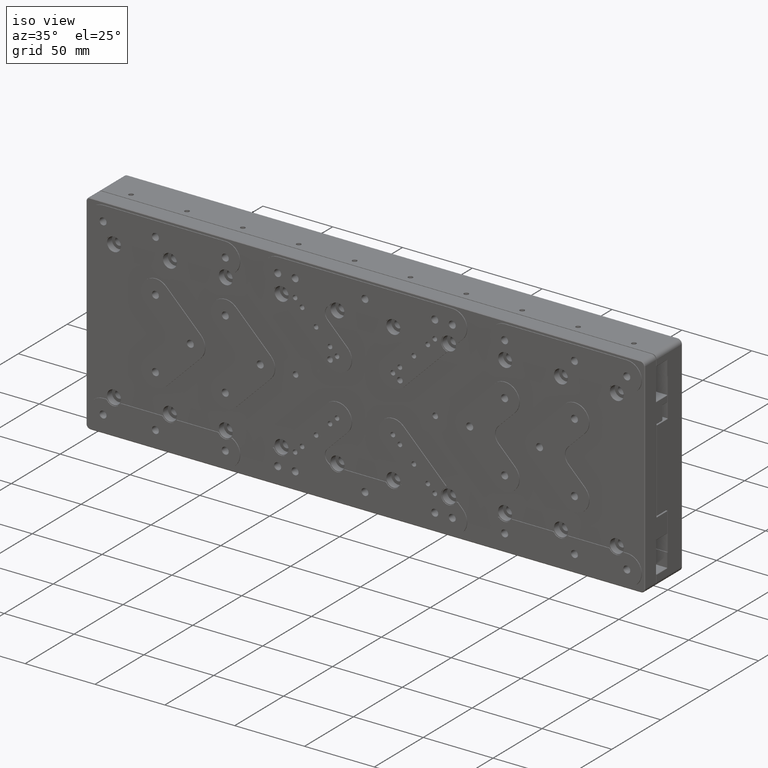
[diagram: clean part render]
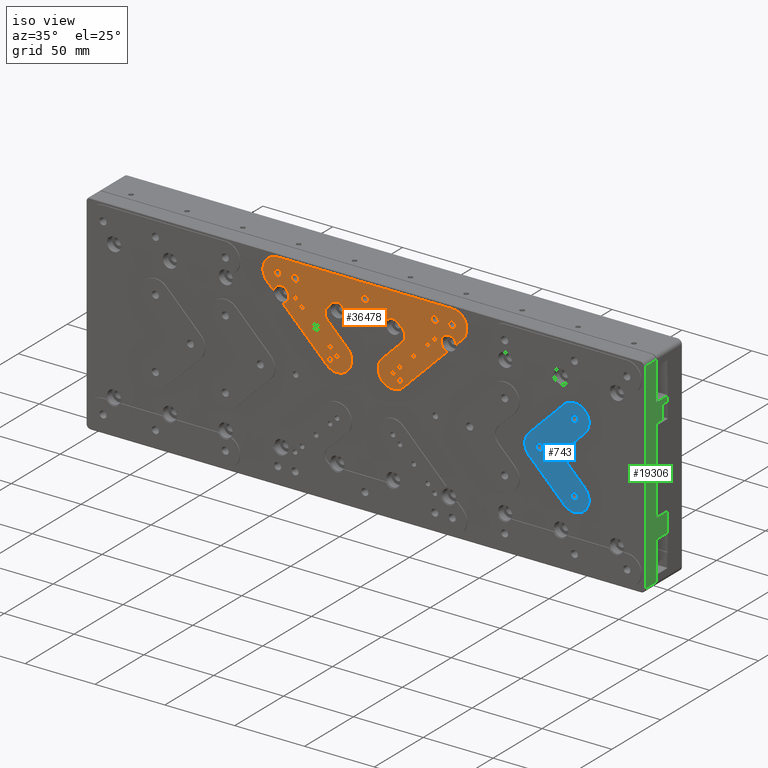
[diagram: same view with three faces highlighted in distinct colors, each labeled with its STEP entity id]
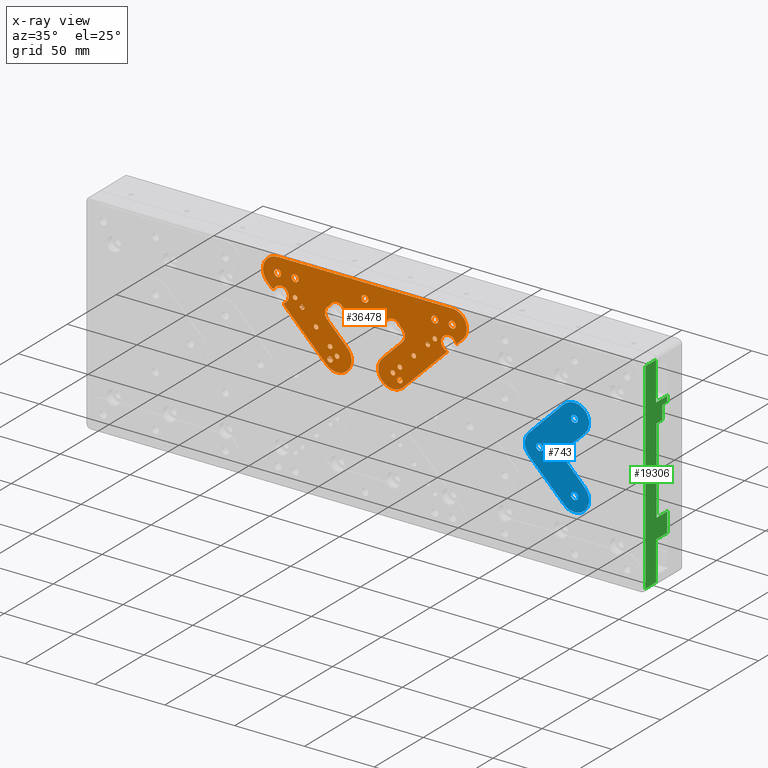
[diagram: x-ray of the same camera — body ghosted, the three highlighted faces saturated]
A machine part, iso view with three faces highlighted in distinct colors.
The next image is the same camera in x-ray (body ghosted, the three faces saturated) — at least one of them is partly hidden behind the body in this view.
Their STEP definitions:

[orange] entity #36478 — the highlighted planar face has unit normal (0, -1, 0).
#2 = VERTEX_POINT ( 'NONE', #35828 ) ;
#84 = AXIS2_PLACEMENT_3D ( 'NONE', #9169, #21508, #33805 ) ;
#99 = ORIENTED_EDGE ( 'NONE', *, *, #12817, .T. ) ;
#141 = EDGE_CURVE ( 'NONE', #20205, #24578, #38051, .T. ) ;
#161 = VECTOR ( 'NONE', #30609, 1000.000000000000114 ) ;
#328 = CARTESIAN_POINT ( 'NONE',  ( -25.00000000000000000, -24.00000000000000000, 18.57000000000000384 ) ) ;
#412 = DIRECTION ( 'NONE',  ( -0.000000000000000000, 1.000000000000000000, -0.000000000000000000 ) ) ;
#424 = ORIENTED_EDGE ( 'NONE', *, *, #7129, .F. ) ;
#442 = EDGE_CURVE ( 'NONE', #27727, #27466, #10874, .T. ) ;
#455 = VECTOR ( 'NONE', #6721, 1000.000000000000114 ) ;
#502 = CARTESIAN_POINT ( 'NONE',  ( -62.50000000000000000, -24.00000000000000000, 73.00000000000000000 ) ) ;
#583 = CARTESIAN_POINT ( 'NONE',  ( -20.00000000000000000, -24.00000000000000000, 18.35000000000000142 ) ) ;
#607 = AXIS2_PLACEMENT_3D ( 'NONE', #3316, #686, #12405 ) ;
#619 = DIRECTION ( 'NONE',  ( 0.000000000000000000, 0.000000000000000000, 1.000000000000000000 ) ) ;
#649 = EDGE_CURVE ( 'NONE', #12313, #12313, #16045, .T. ) ;
#686 = DIRECTION ( 'NONE',  ( -0.000000000000000000, 1.000000000000000000, -0.000000000000000000 ) ) ;
#789 = AXIS2_PLACEMENT_3D ( 'NONE', #12323, #21814, #36958 ) ;
#876 = EDGE_CURVE ( 'NONE', #3380, #26182, #31849, .T. ) ;
#936 = CARTESIAN_POINT ( 'NONE',  ( 60.00000000000000000, -24.00000000000000000, 49.50000000000000000 ) ) ;
#1004 = EDGE_CURVE ( 'NONE', #7753, #2730, #7042, .T. ) ;
#1129 = DIRECTION ( 'NONE',  ( 0.000000000000000000, 0.000000000000000000, -1.000000000000000000 ) ) ;
#1144 = EDGE_CURVE ( 'NONE', #2, #27466, #15857, .T. ) ;
#1165 = VECTOR ( 'NONE', #3762, 1000.000000000000114 ) ;
#1308 = CARTESIAN_POINT ( 'NONE',  ( -20.00000000000000000, -24.00000000000000000, 49.50000000000000000 ) ) ;
#1435 = CARTESIAN_POINT ( 'NONE',  ( -25.00000000000000000, -24.00000000000000000, 25.00000000000000000 ) ) ;
#1444 = ORIENTED_EDGE ( 'NONE', *, *, #876, .T. ) ;
#1818 = CARTESIAN_POINT ( 'NONE',  ( 45.00000000000000000, -24.00000000000000000, 45.00000000000000000 ) ) ;
#1924 = VERTEX_POINT ( 'NONE', #7788 ) ;
#2005 = ORIENTED_EDGE ( 'NONE', *, *, #24337, .T. ) ;
#2015 = CIRCLE ( 'NONE', #84, 1.649999999999998579 ) ;
#2068 = DIRECTION ( 'NONE',  ( -0.000000000000000000, 1.000000000000000000, -0.000000000000000000 ) ) ;
#2151 = DIRECTION ( 'NONE',  ( -0.000000000000000000, 1.000000000000000000, -0.000000000000000000 ) ) ;
#2175 = EDGE_LOOP ( 'NONE', ( #12240 ) ) ;
#2231 = VERTEX_POINT ( 'NONE', #37661 ) ;
#2303 = EDGE_CURVE ( 'NONE', #17864, #28243, #21011, .T. ) ;
#2409 = CIRCLE ( 'NONE', #7565, 1.000000000000000888 ) ;
#2730 = VERTEX_POINT ( 'NONE', #37819 ) ;
#2934 = CARTESIAN_POINT ( 'NONE',  ( 25.91194536576000118, -24.00000000000000000, 52.20164801412001054 ) ) ;
#2965 = VERTEX_POINT ( 'NONE', #33664 ) ;
#3050 = DIRECTION ( 'NONE',  ( 0.000000000000000000, 0.000000000000000000, 1.000000000000000000 ) ) ;
#3146 = DIRECTION ( 'NONE',  ( 0.000000000000000000, 0.000000000000000000, 1.000000000000000000 ) ) ;
#3265 = CIRCLE ( 'NONE', #25203, 10.50000000000000000 ) ;
#3316 = CARTESIAN_POINT ( 'NONE',  ( 0.000000000000000000, -24.00000000000000000, 62.50000000000000000 ) ) ;
#3380 = VERTEX_POINT ( 'NONE', #39702 ) ;
#3397 = CIRCLE ( 'NONE', #22107, 1.649999999999998579 ) ;
#3762 = DIRECTION ( 'NONE',  ( 0.7071067811865975328, 0.000000000000000000, -0.7071067811864976127 ) ) ;
#3784 = ORIENTED_EDGE ( 'NONE', *, *, #19103, .T. ) ;
#3791 = ORIENTED_EDGE ( 'NONE', *, *, #19424, .F. ) ;
#3822 = CARTESIAN_POINT ( 'NONE',  ( -25.44816405934569659, -24.00000000000000000, 51.31569829781717118 ) ) ;
#3913 = CARTESIAN_POINT ( 'NONE',  ( -20.00000000000000000, -24.00000000000000000, 20.00000000000000000 ) ) ;
#4090 = AXIS2_PLACEMENT_3D ( 'NONE', #30050, #15536, #12088 ) ;
#4115 = ORIENTED_EDGE ( 'NONE', *, *, #15513, .F. ) ;
#4439 = EDGE_CURVE ( 'NONE', #27727, #6907, #31896, .T. ) ;
#4738 = DIRECTION ( 'NONE',  ( -0.000000000000000000, 1.000000000000000000, -0.000000000000000000 ) ) ;
#4741 = CARTESIAN_POINT ( 'NONE',  ( 20.00000000000000000, -24.00000000000000000, 49.50000000000000000 ) ) ;
#4799 = FACE_BOUND ( 'NONE', #39011, .T. ) ;
#4991 = FACE_BOUND ( 'NONE', #8391, .T. ) ;
#5118 = EDGE_CURVE ( 'NONE', #16540, #16540, #11783, .T. ) ;
#5126 = VECTOR ( 'NONE', #19599, 1000.000000000000114 ) ;
#5201 = DIRECTION ( 'NONE',  ( 0.000000000000000000, 0.000000000000000000, 1.000000000000000000 ) ) ;
#5507 = DIRECTION ( 'NONE',  ( 1.652117596168387756E-15, 0.000000000000000000, -1.000000000000000000 ) ) ;
#6158 = DIRECTION ( 'NONE',  ( -0.000000000000000000, 1.000000000000000000, -0.000000000000000000 ) ) ;
#6566 = CARTESIAN_POINT ( 'NONE',  ( 58.95033482779948741, -24.00000000000000000, 44.10109242288103815 ) ) ;
#6721 = DIRECTION ( 'NONE',  ( 0.7071067811865975328, 0.000000000000000000, 0.7071067811864976127 ) ) ;
#6797 = AXIS2_PLACEMENT_3D ( 'NONE', #1308, #16863, #28759 ) ;
#6839 = EDGE_LOOP ( 'NONE', ( #37155 ) ) ;
#6907 = VERTEX_POINT ( 'NONE', #8012 ) ;
#7042 = CIRCLE ( 'NONE', #29605, 1.000000000000000888 ) ;
#7129 = EDGE_CURVE ( 'NONE', #11116, #29297, #12774, .T. ) ;
#7206 = ORIENTED_EDGE ( 'NONE', *, *, #1144, .T. ) ;
#7219 = LINE ( 'NONE', #19555, #19774 ) ;
#7323 = CARTESIAN_POINT ( 'NONE',  ( 69.92462120246000268, -24.00000000000000000, 55.07537879753999732 ) ) ;
#7432 = EDGE_LOOP ( 'NONE', ( #12372 ) ) ;
#7511 = AXIS2_PLACEMENT_3D ( 'NONE', #39005, #11500, #11299 ) ;
#7565 = AXIS2_PLACEMENT_3D ( 'NONE', #27605, #8617, #23983 ) ;
#7644 = ORIENTED_EDGE ( 'NONE', *, *, #442, .F. ) ;
#7711 = VECTOR ( 'NONE', #9193, 1000.000000000000000 ) ;
#7753 = VERTEX_POINT ( 'NONE', #20648 ) ;
#7788 = CARTESIAN_POINT ( 'NONE',  ( -50.00000000000000000, -24.00000000000000000, 48.35000000000000142 ) ) ;
#7820 = DIRECTION ( 'NONE',  ( 0.000000000000000000, 0.000000000000000000, -1.000000000000000000 ) ) ;
#7825 = FACE_BOUND ( 'NONE', #29875, .T. ) ;
#7891 = EDGE_CURVE ( 'NONE', #18314, #18314, #3397, .T. ) ;
#7895 = CIRCLE ( 'NONE', #33678, 1.649999999999998579 ) ;
#7958 = CARTESIAN_POINT ( 'NONE',  ( 22.66547622083999869, -24.00000000000000000, 46.00000000000000000 ) ) ;
#7991 = CARTESIAN_POINT ( 'NONE',  ( 0.000000000000000000, -24.00000000000000000, 60.00000000000000000 ) ) ;
#8012 = CARTESIAN_POINT ( 'NONE',  ( -66.53023842891272466, -24.00000000000000000, 51.68099602398721260 ) ) ;
#8130 = ORIENTED_EDGE ( 'NONE', *, *, #32243, .F. ) ;
#8211 = FACE_BOUND ( 'NONE', #6839, .T. ) ;
#8331 = EDGE_CURVE ( 'NONE', #29593, #6907, #29222, .T. ) ;
#8391 = EDGE_LOOP ( 'NONE', ( #31858 ) ) ;
#8418 = FACE_OUTER_BOUND ( 'NONE', #23690, .T. ) ;
#8617 = DIRECTION ( 'NONE',  ( 0.000000000000000000, 1.000000000000000000, 0.000000000000000000 ) ) ;
#8683 = DIRECTION ( 'NONE',  ( 0.000000000000000000, 0.000000000000000000, -1.000000000000000000 ) ) ;
#8691 = DIRECTION ( 'NONE',  ( 0.000000000000000000, 0.000000000000000000, -1.000000000000000000 ) ) ;
#8877 = CIRCLE ( 'NONE', #13377, 2.000000000000001776 ) ;
#8936 = AXIS2_PLACEMENT_3D ( 'NONE', #14557, #26887, #8683 ) ;
#9077 = DIRECTION ( 'NONE',  ( -0.7071067811865474617, 0.000000000000000000, -0.7071067811865474617 ) ) ;
#9082 = EDGE_CURVE ( 'NONE', #34877, #34877, #7895, .T. ) ;
#9169 = CARTESIAN_POINT ( 'NONE',  ( 50.00000000000000000, -24.00000000000000000, 50.00000000000000000 ) ) ;
#9193 = DIRECTION ( 'NONE',  ( -1.000000000000000000, 0.000000000000000000, -0.000000000000000000 ) ) ;
#9306 = CARTESIAN_POINT ( 'NONE',  ( -14.52277442495000059, -24.00000000000000000, 53.00000000000000000 ) ) ;
#9548 = DIRECTION ( 'NONE',  ( -0.000000000000000000, 1.000000000000000000, -0.000000000000000000 ) ) ;
#9630 = CIRCLE ( 'NONE', #607, 2.500000000000002220 ) ;
#9633 = VERTEX_POINT ( 'NONE', #33861 ) ;
#9716 = CARTESIAN_POINT ( 'NONE',  ( -20.00000000000000000, -24.00000000000000000, 20.00000000000000000 ) ) ;
#9735 = EDGE_CURVE ( 'NONE', #13049, #13049, #14226, .T. ) ;
#9815 = CARTESIAN_POINT ( 'NONE',  ( -50.00000000000000000, -24.00000000000000000, 60.00000000000000000 ) ) ;
#9889 = CARTESIAN_POINT ( 'NONE',  ( -50.00000000000000000, -24.00000000000000000, 62.50000000000000000 ) ) ;
#10136 = DIRECTION ( 'NONE',  ( -0.000000000000000000, 1.000000000000000000, -0.000000000000000000 ) ) ;
#10189 = CIRCLE ( 'NONE', #25691, 1.649999999999998579 ) ;
#10299 = CARTESIAN_POINT ( 'NONE',  ( -27.42462120245999913, -24.00000000000000000, 12.57537879754000087 ) ) ;
#10369 = EDGE_CURVE ( 'NONE', #1924, #1924, #35487, .T. ) ;
#10831 = AXIS2_PLACEMENT_3D ( 'NONE', #4741, #14225, #26552 ) ;
#10874 = CIRCLE ( 'NONE', #28282, 10.50000000000000178 ) ;
#11032 = ORIENTED_EDGE ( 'NONE', *, *, #19831, .T. ) ;
#11057 = FACE_BOUND ( 'NONE', #35270, .T. ) ;
#11116 = VERTEX_POINT ( 'NONE', #38581 ) ;
#11124 = ORIENTED_EDGE ( 'NONE', *, *, #37959, .T. ) ;
#11125 = VECTOR ( 'NONE', #9077, 1000.000000000000114 ) ;
#11183 = ORIENTED_EDGE ( 'NONE', *, *, #7891, .T. ) ;
#11266 = CARTESIAN_POINT ( 'NONE',  ( -35.00000000000000000, -24.00000000000000000, 33.35000000000000142 ) ) ;
#11299 = DIRECTION ( 'NONE',  ( 0.000000000000000000, 0.000000000000000000, -1.000000000000000000 ) ) ;
#11435 = FACE_BOUND ( 'NONE', #20027, .T. ) ;
#11460 = CIRCLE ( 'NONE', #10831, 5.499999999999998224 ) ;
#11466 = EDGE_CURVE ( 'NONE', #25592, #29297, #7219, .T. ) ;
#11494 = CIRCLE ( 'NONE', #37978, 1.000000000000000888 ) ;
#11500 = DIRECTION ( 'NONE',  ( -0.000000000000000000, 1.000000000000000000, -0.000000000000000000 ) ) ;
#11573 = EDGE_LOOP ( 'NONE', ( #34408 ) ) ;
#11637 = CARTESIAN_POINT ( 'NONE',  ( 35.00000000000000000, -24.00000000000000000, 35.00000000000000000 ) ) ;
#11642 = ORIENTED_EDGE ( 'NONE', *, *, #2303, .T. ) ;
#11643 = PLANE ( 'NONE',  #29972 ) ;
#11783 = CIRCLE ( 'NONE', #13819, 1.649999999999998579 ) ;
#11930 = CARTESIAN_POINT ( 'NONE',  ( 12.57537879754000087, -24.00000000000000000, 27.42462120245999913 ) ) ;
#11933 = CIRCLE ( 'NONE', #22275, 5.999999999999998224 ) ;
#12088 = DIRECTION ( 'NONE',  ( 0.000000000000000000, 0.000000000000000000, -1.000000000000000000 ) ) ;
#12183 = AXIS2_PLACEMENT_3D ( 'NONE', #13084, #32045, #31852 ) ;
#12240 = ORIENTED_EDGE ( 'NONE', *, *, #9735, .T. ) ;
#12313 = VERTEX_POINT ( 'NONE', #36545 ) ;
#12323 = CARTESIAN_POINT ( 'NONE',  ( 62.50000000000000000, -24.00000000000000000, 62.50000000000000000 ) ) ;
#12372 = ORIENTED_EDGE ( 'NONE', *, *, #5118, .T. ) ;
#12405 = DIRECTION ( 'NONE',  ( 0.000000000000000000, 0.000000000000000000, -1.000000000000000000 ) ) ;
#12445 = CARTESIAN_POINT ( 'NONE',  ( -27.42462120245999913, -24.00000000000000000, 12.57537879754000087 ) ) ;
#12763 = EDGE_CURVE ( 'NONE', #29593, #15067, #31443, .T. ) ;
#12774 = CIRCLE ( 'NONE', #22479, 1.000000000000000888 ) ;
#12813 = EDGE_LOOP ( 'NONE', ( #31510 ) ) ;
#12817 = EDGE_CURVE ( 'NONE', #21812, #21322, #21135, .T. ) ;
#12832 = DIRECTION ( 'NONE',  ( -1.214306433183763862E-14, 0.000000000000000000, -1.000000000000000000 ) ) ;
#12882 = DIRECTION ( 'NONE',  ( 0.000000000000000000, 0.000000000000000000, 1.000000000000000000 ) ) ;
#13049 = VERTEX_POINT ( 'NONE', #9815 ) ;
#13084 = CARTESIAN_POINT ( 'NONE',  ( 62.50000000000000000, -24.00000000000000000, 62.50000000000000000 ) ) ;
#13377 = AXIS2_PLACEMENT_3D ( 'NONE', #18604, #30309, #3050 ) ;
#13420 = AXIS2_PLACEMENT_3D ( 'NONE', #936, #16295, #28608 ) ;
#13471 = DIRECTION ( 'NONE',  ( -0.000000000000000000, 1.000000000000000000, -0.000000000000000000 ) ) ;
#13617 = EDGE_CURVE ( 'NONE', #15032, #15032, #37218, .T. ) ;
#13706 = ORIENTED_EDGE ( 'NONE', *, *, #39184, .T. ) ;
#13711 = ORIENTED_EDGE ( 'NONE', *, *, #21248, .T. ) ;
#13819 = AXIS2_PLACEMENT_3D ( 'NONE', #3913, #9548, #25114 ) ;
#13852 = VERTEX_POINT ( 'NONE', #3822 ) ;
#13886 = FACE_BOUND ( 'NONE', #11573, .T. ) ;
#13952 = ORIENTED_EDGE ( 'NONE', *, *, #9082, .T. ) ;
#14226 = CIRCLE ( 'NONE', #33595, 2.500000000000002220 ) ;
#14225 = DIRECTION ( 'NONE',  ( 0.000000000000000000, 1.000000000000000000, 0.000000000000000000 ) ) ;
#14477 = EDGE_LOOP ( 'NONE', ( #23153 ) ) ;
#14557 = CARTESIAN_POINT ( 'NONE',  ( -62.50000000000000000, -24.00000000000000000, 62.50000000000000000 ) ) ;
#14682 = CARTESIAN_POINT ( 'NONE',  ( 69.92462120246000268, -24.00000000000000000, 55.07537879753999732 ) ) ;
#14898 = EDGE_CURVE ( 'NONE', #38608, #38608, #30179, .T. ) ;
#14966 = CARTESIAN_POINT ( 'NONE',  ( -45.00000000000000000, -24.00000000000000000, 45.00000000000000000 ) ) ;
#15032 = VERTEX_POINT ( 'NONE', #30161 ) ;
#15067 = VERTEX_POINT ( 'NONE', #30461 ) ;
#15145 = CARTESIAN_POINT ( 'NONE',  ( -25.00241530948921209, -24.00000000000000000, 51.78600985810058432 ) ) ;
#15147 = CARTESIAN_POINT ( 'NONE',  ( -57.81900397600931996, -24.00000000000000000, 42.96976157109062910 ) ) ;
#15336 = LINE ( 'NONE', #39402, #11125 ) ;
#15513 = EDGE_CURVE ( 'NONE', #21812, #15067, #2409, .T. ) ;
#15536 = DIRECTION ( 'NONE',  ( -0.000000000000000000, 1.000000000000000000, -0.000000000000000000 ) ) ;
#15739 = EDGE_CURVE ( 'NONE', #23776, #2231, #27571, .T. ) ;
#15748 = EDGE_CURVE ( 'NONE', #35580, #35580, #10189, .T. ) ;
#15761 = DIRECTION ( 'NONE',  ( 0.000000000000000000, 0.000000000000000000, -1.000000000000000000 ) ) ;
#15857 = LINE ( 'NONE', #502, #7711 ) ;
#15879 = DIRECTION ( 'NONE',  ( -0.000000000000000000, 1.000000000000000000, -0.000000000000000000 ) ) ;
#15906 = CARTESIAN_POINT ( 'NONE',  ( 69.92462120245973267, -24.00000000000000000, 55.07537879753973442 ) ) ;
#16045 = CIRCLE ( 'NONE', #8936, 2.500000000000002220 ) ;
#16080 = CARTESIAN_POINT ( 'NONE',  ( 27.42462120245761170, -24.00000000000000000, 12.57537879754186427 ) ) ;
#16295 = DIRECTION ( 'NONE',  ( 0.000000000000000000, 1.000000000000000000, 0.000000000000000000 ) ) ;
#16540 = VERTEX_POINT ( 'NONE', #583 ) ;
#16776 = ORIENTED_EDGE ( 'NONE', *, *, #1004, .F. ) ;
#16839 = LINE ( 'NONE', #7323, #455 ) ;
#16863 = DIRECTION ( 'NONE',  ( 0.000000000000000000, 1.000000000000000000, 0.000000000000000000 ) ) ;
#16913 = DIRECTION ( 'NONE',  ( 0.000000000000000000, 0.000000000000000000, -1.000000000000000000 ) ) ;
#16987 = ORIENTED_EDGE ( 'NONE', *, *, #37449, .F. ) ;
#17115 = FACE_BOUND ( 'NONE', #7432, .T. ) ;
#17453 = DIRECTION ( 'NONE',  ( -0.000000000000000000, 1.000000000000000000, -0.000000000000000000 ) ) ;
#17864 = VERTEX_POINT ( 'NONE', #15145 ) ;
#17916 = LINE ( 'NONE', #14682, #161 ) ;
#18314 = VERTEX_POINT ( 'NONE', #33657 ) ;
#18357 = EDGE_LOOP ( 'NONE', ( #24726 ) ) ;
#18604 = CARTESIAN_POINT ( 'NONE',  ( 25.00000000000000000, -24.00000000000000000, 16.57000000000000028 ) ) ;
#18620 = CIRCLE ( 'NONE', #12183, 2.500000000000002220 ) ;
#18780 = CARTESIAN_POINT ( 'NONE',  ( 62.50000000000000000, -24.00000000000000000, 60.00000000000000000 ) ) ;
#18889 = DIRECTION ( 'NONE',  ( -0.000000000000000000, 1.000000000000000000, -0.000000000000000000 ) ) ;
#19079 = DIRECTION ( 'NONE',  ( 0.000000000000000000, 1.000000000000000000, 0.000000000000000000 ) ) ;
#19103 = EDGE_CURVE ( 'NONE', #11116, #2730, #11460, .T. ) ;
#19267 = ORIENTED_EDGE ( 'NONE', *, *, #8331, .F. ) ;
#19292 = CIRCLE ( 'NONE', #21231, 5.999999999999998224 ) ;
#19424 = EDGE_CURVE ( 'NONE', #17864, #13852, #11494, .T. ) ;
#19555 = CARTESIAN_POINT ( 'NONE',  ( 22.66547622083999869, -24.00000000000000000, 52.00000000000000711 ) ) ;
#19589 = VERTEX_POINT ( 'NONE', #15906 ) ;
#19599 = DIRECTION ( 'NONE',  ( 0.7071067811865975328, 0.000000000000000000, -0.7071067811864976127 ) ) ;
#19682 = EDGE_CURVE ( 'NONE', #30465, #30465, #18620, .T. ) ;
#19774 = VECTOR ( 'NONE', #31853, 1000.000000000000000 ) ;
#19815 = AXIS2_PLACEMENT_3D ( 'NONE', #1818, #20019, #29680 ) ;
#19831 = EDGE_CURVE ( 'NONE', #26182, #13852, #19292, .T. ) ;
#19852 = CARTESIAN_POINT ( 'NONE',  ( 26.90811690795964495, -24.00000000000000000, 41.75735931288035374 ) ) ;
#19929 = VERTEX_POINT ( 'NONE', #22761 ) ;
#20019 = DIRECTION ( 'NONE',  ( -0.000000000000000000, 1.000000000000000000, -0.000000000000000000 ) ) ;
#20027 = EDGE_LOOP ( 'NONE', ( #13952 ) ) ;
#20134 = CARTESIAN_POINT ( 'NONE',  ( -35.00000000000000000, -24.00000000000000000, 35.00000000000000000 ) ) ;
#20136 = DIRECTION ( 'NONE',  ( -0.7071067811865975328, 0.000000000000000000, 0.7071067811864976127 ) ) ;
#20205 = VERTEX_POINT ( 'NONE', #16080 ) ;
#20278 = ORIENTED_EDGE ( 'NONE', *, *, #13617, .T. ) ;
#20548 = FACE_BOUND ( 'NONE', #12813, .T. ) ;
#20648 = CARTESIAN_POINT ( 'NONE',  ( 25.44816405934496828, -24.00000000000000000, 51.31569829781579273 ) ) ;
#20745 = CARTESIAN_POINT ( 'NONE',  ( -200.0000000000000000, -24.00000000000000000, 75.00000000000000000 ) ) ;
#21011 = CIRCLE ( 'NONE', #6797, 5.499999999999998224 ) ;
#21012 = ORIENTED_EDGE ( 'NONE', *, *, #30181, .T. ) ;
#21053 = AXIS2_PLACEMENT_3D ( 'NONE', #9306, #33745, #619 ) ;
#21135 = LINE ( 'NONE', #12445, #1165 ) ;
#21176 = AXIS2_PLACEMENT_3D ( 'NONE', #11637, #6158, #24148 ) ;
#21231 = AXIS2_PLACEMENT_3D ( 'NONE', #35692, #2151, #7820 ) ;
#21248 = EDGE_CURVE ( 'NONE', #7753, #25775, #11933, .T. ) ;
#21322 = VERTEX_POINT ( 'NONE', #23511 ) ;
#21442 = CARTESIAN_POINT ( 'NONE',  ( -26.90811690795984745, -24.00000000000000000, 41.75735931287984926 ) ) ;
#21508 = DIRECTION ( 'NONE',  ( -0.000000000000000000, 1.000000000000000000, -0.000000000000000000 ) ) ;
#21788 = AXIS2_PLACEMENT_3D ( 'NONE', #39529, #33444, #5201 ) ;
#21812 = VERTEX_POINT ( 'NONE', #15147 ) ;
#21814 = DIRECTION ( 'NONE',  ( -0.000000000000000000, 1.000000000000000000, -0.000000000000000000 ) ) ;
#21825 = DIRECTION ( 'NONE',  ( -0.000000000000000000, 1.000000000000000000, -0.000000000000000000 ) ) ;
#22107 = AXIS2_PLACEMENT_3D ( 'NONE', #14966, #31105, #8691 ) ;
#22275 = AXIS2_PLACEMENT_3D ( 'NONE', #7958, #17453, #29358 ) ;
#22401 = EDGE_CURVE ( 'NONE', #23208, #23208, #36538, .T. ) ;
#22479 = AXIS2_PLACEMENT_3D ( 'NONE', #24752, #18889, #12832 ) ;
#22761 = CARTESIAN_POINT ( 'NONE',  ( 50.00000000000000000, -24.00000000000000000, 60.00000000000000000 ) ) ;
#22848 = ORIENTED_EDGE ( 'NONE', *, *, #4439, .T. ) ;
#22867 = CARTESIAN_POINT ( 'NONE',  ( -62.50000000000000000, -24.00000000000000000, 62.50000000000000000 ) ) ;
#22965 = DIRECTION ( 'NONE',  ( -0.000000000000000000, 1.000000000000000000, -0.000000000000000000 ) ) ;
#23153 = ORIENTED_EDGE ( 'NONE', *, *, #25070, .T. ) ;
#23208 = VERTEX_POINT ( 'NONE', #11266 ) ;
#23511 = CARTESIAN_POINT ( 'NONE',  ( -27.42462120245973978, -24.00000000000000000, 12.57537879753973975 ) ) ;
#23690 = EDGE_LOOP ( 'NONE', ( #22848, #19267, #37860, #4115, #99, #16987, #1444, #11032, #3791, #11642, #30975, #37509, #424, #3784, #16776, #13711, #23843, #33866, #2005, #34126, #13706, #8130, #7206, #7644 ) ) ;
#23768 = FACE_BOUND ( 'NONE', #2175, .T. ) ;
#23776 = VERTEX_POINT ( 'NONE', #6566 ) ;
#23841 = ORIENTED_EDGE ( 'NONE', *, *, #24832, .T. ) ;
#23843 = ORIENTED_EDGE ( 'NONE', *, *, #38776, .T. ) ;
#23909 = CARTESIAN_POINT ( 'NONE',  ( 20.00000000000000000, -24.00000000000000000, 20.00000000000000000 ) ) ;
#23983 = DIRECTION ( 'NONE',  ( 0.000000000000000000, 0.000000000000000000, 1.000000000000000000 ) ) ;
#24074 = DIRECTION ( 'NONE',  ( 0.000000000000000000, 0.000000000000000000, -1.000000000000000000 ) ) ;
#24148 = DIRECTION ( 'NONE',  ( 0.000000000000000000, 0.000000000000000000, -1.000000000000000000 ) ) ;
#24337 = EDGE_CURVE ( 'NONE', #20205, #23776, #16839, .T. ) ;
#24577 = EDGE_CURVE ( 'NONE', #2965, #2965, #8877, .T. ) ;
#24578 = VERTEX_POINT ( 'NONE', #11930 ) ;
#24726 = ORIENTED_EDGE ( 'NONE', *, *, #649, .T. ) ;
#24752 = CARTESIAN_POINT ( 'NONE',  ( 14.52277442495000059, -24.00000000000000355, 53.00000000000000000 ) ) ;
#24832 = EDGE_CURVE ( 'NONE', #39740, #39740, #32123, .T. ) ;
#25067 = CARTESIAN_POINT ( 'NONE',  ( -62.50000000000000000, -24.00000000000000000, 73.00000000000000000 ) ) ;
#25070 = EDGE_CURVE ( 'NONE', #9633, #9633, #34052, .T. ) ;
#25114 = DIRECTION ( 'NONE',  ( 0.000000000000000000, 0.000000000000000000, -1.000000000000000000 ) ) ;
#25203 = AXIS2_PLACEMENT_3D ( 'NONE', #9716, #412, #25670 ) ;
#25373 = EDGE_LOOP ( 'NONE', ( #20278 ) ) ;
#25592 = VERTEX_POINT ( 'NONE', #34200 ) ;
#25670 = DIRECTION ( 'NONE',  ( 0.000000000000000000, 0.000000000000000000, -1.000000000000000000 ) ) ;
#25691 = AXIS2_PLACEMENT_3D ( 'NONE', #28795, #15879, #1129 ) ;
#25765 = VECTOR ( 'NONE', #20136, 1000.000000000000114 ) ;
#25775 = VERTEX_POINT ( 'NONE', #19852 ) ;
#25822 = CARTESIAN_POINT ( 'NONE',  ( 14.52277442495000059, -24.00000000000000000, 52.00000000000000711 ) ) ;
#25892 = EDGE_LOOP ( 'NONE', ( #11183 ) ) ;
#26070 = DIRECTION ( 'NONE',  ( -0.000000000000000000, 1.000000000000000000, -0.000000000000000000 ) ) ;
#26182 = VERTEX_POINT ( 'NONE', #21442 ) ;
#26183 = EDGE_CURVE ( 'NONE', #25592, #28243, #34511, .T. ) ;
#26197 = CARTESIAN_POINT ( 'NONE',  ( -26.90811690796000022, -24.00000000000000000, 41.75735931287999847 ) ) ;
#26228 = AXIS2_PLACEMENT_3D ( 'NONE', #20134, #22965, #35290 ) ;
#26424 = FACE_BOUND ( 'NONE', #25373, .T. ) ;
#26552 = DIRECTION ( 'NONE',  ( 0.000000000000000000, 0.000000000000000000, 1.000000000000000000 ) ) ;
#26657 = DIRECTION ( 'NONE',  ( -0.000000000000000000, 1.000000000000000000, -0.000000000000000000 ) ) ;
#26733 = VERTEX_POINT ( 'NONE', #39063 ) ;
#26887 = DIRECTION ( 'NONE',  ( -0.000000000000000000, 1.000000000000000000, -0.000000000000000000 ) ) ;
#27195 = CARTESIAN_POINT ( 'NONE',  ( -64.92726524037858837, -24.00000000000000000, 51.94377929669006733 ) ) ;
#27466 = VERTEX_POINT ( 'NONE', #25067 ) ;
#27571 = CIRCLE ( 'NONE', #13420, 5.499999999999998224 ) ;
#27605 = CARTESIAN_POINT ( 'NONE',  ( -57.11189719482000271, -24.00000000000000000, 43.67686835228000319 ) ) ;
#27713 = AXIS2_PLACEMENT_3D ( 'NONE', #23909, #4738, #5507 ) ;
#27727 = VERTEX_POINT ( 'NONE', #36347 ) ;
#27796 = EDGE_CURVE ( 'NONE', #19929, #19929, #32018, .T. ) ;
#28243 = VERTEX_POINT ( 'NONE', #37090 ) ;
#28282 = AXIS2_PLACEMENT_3D ( 'NONE', #22867, #10136, #32151 ) ;
#28411 = CARTESIAN_POINT ( 'NONE',  ( 25.00000000000000000, -24.00000000000000000, 23.35000000000000142 ) ) ;
#28515 = CIRCLE ( 'NONE', #789, 10.50000000000000178 ) ;
#28608 = DIRECTION ( 'NONE',  ( 0.000000000000000000, 0.000000000000000000, 1.000000000000000000 ) ) ;
#28759 = DIRECTION ( 'NONE',  ( 0.000000000000000000, 0.000000000000000000, 1.000000000000000000 ) ) ;
#28795 = CARTESIAN_POINT ( 'NONE',  ( 20.00000000000000000, -24.00000000000000000, 20.00000000000000000 ) ) ;
#29222 = CIRCLE ( 'NONE', #4090, 1.000000000000000888 ) ;
#29297 = VERTEX_POINT ( 'NONE', #25822 ) ;
#29358 = DIRECTION ( 'NONE',  ( 2.891205793294679411E-15, 0.000000000000000000, -1.000000000000000000 ) ) ;
#29419 = DIRECTION ( 'NONE',  ( 0.000000000000000000, -0.000000000000000000, -1.000000000000000000 ) ) ;
#29593 = VERTEX_POINT ( 'NONE', #27195 ) ;
#29605 = AXIS2_PLACEMENT_3D ( 'NONE', #2934, #19079, #3146 ) ;
#29620 = FACE_BOUND ( 'NONE', #30744, .T. ) ;
#29680 = DIRECTION ( 'NONE',  ( 0.000000000000000000, 0.000000000000000000, -1.000000000000000000 ) ) ;
#29875 = EDGE_LOOP ( 'NONE', ( #35391 ) ) ;
#29972 = AXIS2_PLACEMENT_3D ( 'NONE', #20745, #33048, #29419 ) ;
#30050 = CARTESIAN_POINT ( 'NONE',  ( -65.82313164772000391, -24.00000000000000355, 52.38810280517999729 ) ) ;
#30161 = CARTESIAN_POINT ( 'NONE',  ( 45.00000000000000000, -24.00000000000000000, 43.35000000000000142 ) ) ;
#30179 = CIRCLE ( 'NONE', #32776, 1.649999999999998579 ) ;
#30181 = EDGE_CURVE ( 'NONE', #35482, #35482, #9630, .T. ) ;
#30247 = DIRECTION ( 'NONE',  ( 1.387778780781444413E-14, 0.000000000000000000, -1.000000000000000000 ) ) ;
#30288 = AXIS2_PLACEMENT_3D ( 'NONE', #35289, #13471, #16913 ) ;
#30309 = DIRECTION ( 'NONE',  ( 0.000000000000000000, 1.000000000000000000, 0.000000000000000000 ) ) ;
#30461 = CARTESIAN_POINT ( 'NONE',  ( -57.55622070330935713, -24.00000000000000000, 44.57273475962027476 ) ) ;
#30465 = VERTEX_POINT ( 'NONE', #18780 ) ;
#30609 = DIRECTION ( 'NONE',  ( 0.7071067811865975328, 0.000000000000000000, 0.7071067811864976127 ) ) ;
#30744 = EDGE_LOOP ( 'NONE', ( #11124 ) ) ;
#30975 = ORIENTED_EDGE ( 'NONE', *, *, #26183, .F. ) ;
#31046 = CARTESIAN_POINT ( 'NONE',  ( -25.00000000000000000, -24.00000000000000000, 16.57000000000000028 ) ) ;
#31105 = DIRECTION ( 'NONE',  ( -0.000000000000000000, 1.000000000000000000, -0.000000000000000000 ) ) ;
#31443 = CIRCLE ( 'NONE', #21788, 5.499999999999998224 ) ;
#31510 = ORIENTED_EDGE ( 'NONE', *, *, #14898, .T. ) ;
#31849 = LINE ( 'NONE', #26197, #25765 ) ;
#31852 = DIRECTION ( 'NONE',  ( 0.000000000000000000, 0.000000000000000000, -1.000000000000000000 ) ) ;
#31853 = DIRECTION ( 'NONE',  ( 1.000000000000000000, 0.000000000000000000, -0.000000000000000000 ) ) ;
#31858 = ORIENTED_EDGE ( 'NONE', *, *, #27796, .T. ) ;
#31896 = LINE ( 'NONE', #10299, #5126 ) ;
#32018 = CIRCLE ( 'NONE', #7511, 2.500000000000002220 ) ;
#32045 = DIRECTION ( 'NONE',  ( -0.000000000000000000, 1.000000000000000000, -0.000000000000000000 ) ) ;
#32123 = CIRCLE ( 'NONE', #36644, 2.000000000000001776 ) ;
#32151 = DIRECTION ( 'NONE',  ( 0.000000000000000000, 0.000000000000000000, -1.000000000000000000 ) ) ;
#32243 = EDGE_CURVE ( 'NONE', #2, #19589, #28515, .T. ) ;
#32648 = FACE_BOUND ( 'NONE', #34529, .T. ) ;
#32776 = AXIS2_PLACEMENT_3D ( 'NONE', #1435, #26070, #38394 ) ;
#33048 = DIRECTION ( 'NONE',  ( 0.000000000000000000, -1.000000000000000000, 0.000000000000000000 ) ) ;
#33444 = DIRECTION ( 'NONE',  ( 0.000000000000000000, 1.000000000000000000, 0.000000000000000000 ) ) ;
#33595 = AXIS2_PLACEMENT_3D ( 'NONE', #9889, #21825, #15761 ) ;
#33657 = CARTESIAN_POINT ( 'NONE',  ( -45.00000000000000000, -24.00000000000000000, 43.35000000000000142 ) ) ;
#33664 = CARTESIAN_POINT ( 'NONE',  ( 25.00000000000000000, -24.00000000000000000, 18.57000000000000384 ) ) ;
#33678 = AXIS2_PLACEMENT_3D ( 'NONE', #39245, #2068, #24074 ) ;
#33745 = DIRECTION ( 'NONE',  ( 0.000000000000000000, 1.000000000000000000, 0.000000000000000000 ) ) ;
#33805 = DIRECTION ( 'NONE',  ( 0.000000000000000000, 0.000000000000000000, -1.000000000000000000 ) ) ;
#33861 = CARTESIAN_POINT ( 'NONE',  ( 35.00000000000000000, -24.00000000000000000, 33.35000000000000142 ) ) ;
#33866 = ORIENTED_EDGE ( 'NONE', *, *, #141, .F. ) ;
#34052 = CIRCLE ( 'NONE', #21176, 1.649999999999998579 ) ;
#34126 = ORIENTED_EDGE ( 'NONE', *, *, #15739, .T. ) ;
#34200 = CARTESIAN_POINT ( 'NONE',  ( -14.52277442495000059, -24.00000000000000000, 52.00000000000000711 ) ) ;
#34291 = DIRECTION ( 'NONE',  ( 0.000000000000000000, 1.000000000000000000, 0.000000000000000000 ) ) ;
#34408 = ORIENTED_EDGE ( 'NONE', *, *, #24577, .T. ) ;
#34511 = CIRCLE ( 'NONE', #21053, 1.000000000000000888 ) ;
#34529 = EDGE_LOOP ( 'NONE', ( #34722 ) ) ;
#34722 = ORIENTED_EDGE ( 'NONE', *, *, #22401, .T. ) ;
#34877 = VERTEX_POINT ( 'NONE', #28411 ) ;
#35167 = CARTESIAN_POINT ( 'NONE',  ( -25.00000000000000000, -24.00000000000000000, 23.35000000000000142 ) ) ;
#35270 = EDGE_LOOP ( 'NONE', ( #36804 ) ) ;
#35289 = CARTESIAN_POINT ( 'NONE',  ( -50.00000000000000000, -24.00000000000000000, 50.00000000000000000 ) ) ;
#35290 = DIRECTION ( 'NONE',  ( 0.000000000000000000, 0.000000000000000000, -1.000000000000000000 ) ) ;
#35391 = ORIENTED_EDGE ( 'NONE', *, *, #10369, .T. ) ;
#35482 = VERTEX_POINT ( 'NONE', #7991 ) ;
#35487 = CIRCLE ( 'NONE', #30288, 1.649999999999998579 ) ;
#35580 = VERTEX_POINT ( 'NONE', #37800 ) ;
#35692 = CARTESIAN_POINT ( 'NONE',  ( -22.66547622083999869, -24.00000000000000000, 46.00000000000000000 ) ) ;
#35828 = CARTESIAN_POINT ( 'NONE',  ( 62.50000000000000000, -24.00000000000000000, 73.00000000000000000 ) ) ;
#36095 = FACE_BOUND ( 'NONE', #38558, .T. ) ;
#36347 = CARTESIAN_POINT ( 'NONE',  ( -69.92462120246273116, -24.00000000000000000, 55.07537879753673593 ) ) ;
#36478 = ADVANCED_FACE ( 'NONE', ( #4799, #13886, #7825, #29620, #17115, #8211, #32648, #39124, #39333, #26424, #20548, #11435, #23768, #36095, #4991, #38747, #11057, #8418 ), #11643, .T. ) ;
#36538 = CIRCLE ( 'NONE', #26228, 1.649999999999998579 ) ;
#36545 = CARTESIAN_POINT ( 'NONE',  ( -62.50000000000000000, -24.00000000000000000, 60.00000000000000000 ) ) ;
#36644 = AXIS2_PLACEMENT_3D ( 'NONE', #31046, #34291, #12882 ) ;
#36804 = ORIENTED_EDGE ( 'NONE', *, *, #19682, .T. ) ;
#36958 = DIRECTION ( 'NONE',  ( 0.000000000000000000, 0.000000000000000000, -1.000000000000000000 ) ) ;
#37090 = CARTESIAN_POINT ( 'NONE',  ( -15.36542451341919424, -24.00000000000000000, 52.46153846153950440 ) ) ;
#37155 = ORIENTED_EDGE ( 'NONE', *, *, #15748, .T. ) ;
#37218 = CIRCLE ( 'NONE', #19815, 1.649999999999998579 ) ;
#37449 = EDGE_CURVE ( 'NONE', #3380, #21322, #3265, .T. ) ;
#37509 = ORIENTED_EDGE ( 'NONE', *, *, #11466, .T. ) ;
#37661 = CARTESIAN_POINT ( 'NONE',  ( 65.39890757711883396, -24.00000000000000000, 50.54966517219963862 ) ) ;
#37800 = CARTESIAN_POINT ( 'NONE',  ( 20.00000000000000000, -24.00000000000000000, 18.35000000000000142 ) ) ;
#37819 = CARTESIAN_POINT ( 'NONE',  ( 25.00241530949166702, -24.00000000000000000, 51.78600985810170698 ) ) ;
#37860 = ORIENTED_EDGE ( 'NONE', *, *, #12763, .T. ) ;
#37959 = EDGE_CURVE ( 'NONE', #26733, #26733, #2015, .T. ) ;
#37978 = AXIS2_PLACEMENT_3D ( 'NONE', #38792, #26657, #30247 ) ;
#38051 = CIRCLE ( 'NONE', #27713, 10.50000000000000000 ) ;
#38394 = DIRECTION ( 'NONE',  ( 0.000000000000000000, 0.000000000000000000, -1.000000000000000000 ) ) ;
#38558 = EDGE_LOOP ( 'NONE', ( #21012 ) ) ;
#38581 = CARTESIAN_POINT ( 'NONE',  ( 15.36542451341978577, -24.00000000000000000, 52.46153846153912070 ) ) ;
#38608 = VERTEX_POINT ( 'NONE', #35167 ) ;
#38747 = FACE_BOUND ( 'NONE', #18357, .T. ) ;
#38776 = EDGE_CURVE ( 'NONE', #25775, #24578, #15336, .T. ) ;
#38792 = CARTESIAN_POINT ( 'NONE',  ( -25.91194536576000118, -24.00000000000000355, 52.20164801412001054 ) ) ;
#39005 = CARTESIAN_POINT ( 'NONE',  ( 50.00000000000000000, -24.00000000000000000, 62.50000000000000000 ) ) ;
#39011 = EDGE_LOOP ( 'NONE', ( #23841 ) ) ;
#39063 = CARTESIAN_POINT ( 'NONE',  ( 50.00000000000000000, -24.00000000000000000, 48.35000000000000142 ) ) ;
#39124 = FACE_BOUND ( 'NONE', #14477, .T. ) ;
#39184 = EDGE_CURVE ( 'NONE', #2231, #19589, #17916, .T. ) ;
#39245 = CARTESIAN_POINT ( 'NONE',  ( 25.00000000000000000, -24.00000000000000000, 25.00000000000000000 ) ) ;
#39333 = FACE_BOUND ( 'NONE', #25892, .T. ) ;
#39402 = CARTESIAN_POINT ( 'NONE',  ( 12.57537879754000087, -24.00000000000000000, 27.42462120245999913 ) ) ;
#39529 = CARTESIAN_POINT ( 'NONE',  ( -60.00000000000000000, -24.00000000000000000, 49.50000000000000000 ) ) ;
#39702 = CARTESIAN_POINT ( 'NONE',  ( -12.57537879754038102, -24.00000000000000000, 27.42462120246014123 ) ) ;
#39740 = VERTEX_POINT ( 'NONE', #328 ) ;

[blue] entity #743 — the highlighted planar face has unit normal (0, -1, 0).
#34 = CARTESIAN_POINT ( 'NONE',  ( 157.4246212024665397, -24.00000000000000000, -17.57537879755293631 ) ) ;
#134 = CARTESIAN_POINT ( 'NONE',  ( 125.0000000000000000, -24.00000000000000000, -2.500000000000000000 ) ) ;
#419 = CIRCLE ( 'NONE', #24286, 2.499999999999998668 ) ;
#564 = DIRECTION ( 'NONE',  ( -0.7071067811865975328, 0.000000000000000000, 0.7071067811864976127 ) ) ;
#659 = VECTOR ( 'NONE', #15353, 1000.000000000000114 ) ;
#743 = ADVANCED_FACE ( 'NONE', ( #34290, #12881, #6613, #9841 ), #22180, .T. ) ;
#786 = DIRECTION ( 'NONE',  ( -0.000000000000000000, 1.000000000000000000, -0.000000000000000000 ) ) ;
#941 = ORIENTED_EDGE ( 'NONE', *, *, #17818, .T. ) ;
#1451 = EDGE_LOOP ( 'NONE', ( #36299, #10211, #14205, #13735, #19326, #33360, #23743, #941 ) ) ;
#1525 = DIRECTION ( 'NONE',  ( 0.000000000000000000, 0.000000000000000000, -1.000000000000000000 ) ) ;
#2086 = EDGE_LOOP ( 'NONE', ( #2845 ) ) ;
#2401 = CARTESIAN_POINT ( 'NONE',  ( 157.4246212024999920, -24.00000000000000000, 17.57537879754000087 ) ) ;
#2765 = VERTEX_POINT ( 'NONE', #134 ) ;
#2845 = ORIENTED_EDGE ( 'NONE', *, *, #6551, .T. ) ;
#3514 = DIRECTION ( 'NONE',  ( -0.000000000000000000, 1.000000000000000000, -0.000000000000000000 ) ) ;
#3643 = VECTOR ( 'NONE', #38741, 1000.000000000000114 ) ;
#3929 = CARTESIAN_POINT ( 'NONE',  ( 150.0000000000000000, -24.00000000000000000, 25.00000000000000000 ) ) ;
#4720 = EDGE_CURVE ( 'NONE', #28810, #13801, #34100, .T. ) ;
#5862 = LINE ( 'NONE', #6460, #659 ) ;
#6460 = CARTESIAN_POINT ( 'NONE',  ( 117.5753787974999938, -24.00000000000000000, 7.424621202458999925 ) ) ;
#6551 = EDGE_CURVE ( 'NONE', #2765, #2765, #15344, .T. ) ;
#6613 = FACE_BOUND ( 'NONE', #2086, .T. ) ;
#7140 = CARTESIAN_POINT ( 'NONE',  ( 150.0000000000000000, -24.00000000000000000, -25.00000000000000000 ) ) ;
#7197 = CARTESIAN_POINT ( 'NONE',  ( 125.0000000000000000, -24.00000000000000000, 0.000000000000000000 ) ) ;
#7368 = CARTESIAN_POINT ( 'NONE',  ( 157.4246212024897318, -24.00000000000000000, 17.57537879752973708 ) ) ;
#7837 = CIRCLE ( 'NONE', #11687, 10.50000000000000000 ) ;
#8937 = ORIENTED_EDGE ( 'NONE', *, *, #27872, .T. ) ;
#9841 = FACE_OUTER_BOUND ( 'NONE', #1451, .T. ) ;
#10011 = VERTEX_POINT ( 'NONE', #19531 ) ;
#10211 = ORIENTED_EDGE ( 'NONE', *, *, #11532, .T. ) ;
#10700 = EDGE_LOOP ( 'NONE', ( #8937 ) ) ;
#11532 = EDGE_CURVE ( 'NONE', #20582, #27914, #17698, .T. ) ;
#11687 = AXIS2_PLACEMENT_3D ( 'NONE', #3929, #16242, #34829 ) ;
#11724 = DIRECTION ( 'NONE',  ( 0.000000000000000000, -1.000000000000000000, 0.000000000000000000 ) ) ;
#11731 = DIRECTION ( 'NONE',  ( 3.469446951953614189E-15, 0.000000000000000000, -1.000000000000000000 ) ) ;
#11796 = CARTESIAN_POINT ( 'NONE',  ( 142.5753787975220348, -24.00000000000000000, 32.42462120245851054 ) ) ;
#11926 = DIRECTION ( 'NONE',  ( -0.000000000000000000, 1.000000000000000000, -0.000000000000000000 ) ) ;
#12341 = CIRCLE ( 'NONE', #24584, 2.499999999999998668 ) ;
#12881 = FACE_BOUND ( 'NONE', #10700, .T. ) ;
#13173 = CARTESIAN_POINT ( 'NONE',  ( 125.0000000000000000, -24.00000000000000000, 0.000000000000000000 ) ) ;
#13735 = ORIENTED_EDGE ( 'NONE', *, *, #4720, .T. ) ;
#13801 = VERTEX_POINT ( 'NONE', #27247 ) ;
#13840 = EDGE_LOOP ( 'NONE', ( #32889 ) ) ;
#13931 = DIRECTION ( 'NONE',  ( 0.7071067811865975328, 0.000000000000000000, 0.7071067811864976127 ) ) ;
#14205 = ORIENTED_EDGE ( 'NONE', *, *, #30285, .F. ) ;
#14693 = VECTOR ( 'NONE', #13931, 1000.000000000000114 ) ;
#14958 = CARTESIAN_POINT ( 'NONE',  ( -200.0000000000000000, -24.00000000000000000, 75.00000000000000000 ) ) ;
#15344 = CIRCLE ( 'NONE', #17282, 2.500000000000000000 ) ;
#15353 = DIRECTION ( 'NONE',  ( -0.7071067811865975328, 0.000000000000000000, -0.7071067811864976127 ) ) ;
#15417 = CIRCLE ( 'NONE', #38014, 10.50000000000000000 ) ;
#15752 = VERTEX_POINT ( 'NONE', #26762 ) ;
#15886 = DIRECTION ( 'NONE',  ( -1.321694076934710205E-15, 0.000000000000000000, -1.000000000000000000 ) ) ;
#16230 = CARTESIAN_POINT ( 'NONE',  ( 117.5753787975082645, -24.00000000000000000, -7.424621202471769266 ) ) ;
#16242 = DIRECTION ( 'NONE',  ( -0.000000000000000000, 1.000000000000000000, -0.000000000000000000 ) ) ;
#16788 = EDGE_CURVE ( 'NONE', #20582, #31179, #15417, .T. ) ;
#17282 = AXIS2_PLACEMENT_3D ( 'NONE', #13173, #20052, #29508 ) ;
#17698 = LINE ( 'NONE', #23964, #3643 ) ;
#17818 = EDGE_CURVE ( 'NONE', #31221, #31179, #5862, .T. ) ;
#18483 = AXIS2_PLACEMENT_3D ( 'NONE', #14958, #11724, #24054 ) ;
#19326 = ORIENTED_EDGE ( 'NONE', *, *, #26047, .T. ) ;
#19531 = CARTESIAN_POINT ( 'NONE',  ( 150.0000000000000000, -24.00000000000000000, -27.50000000000000000 ) ) ;
#19728 = DIRECTION ( 'NONE',  ( -0.000000000000000000, 1.000000000000000000, -0.000000000000000000 ) ) ;
#20052 = DIRECTION ( 'NONE',  ( -0.000000000000000000, 1.000000000000000000, -0.000000000000000000 ) ) ;
#20582 = VERTEX_POINT ( 'NONE', #16230 ) ;
#21693 = CIRCLE ( 'NONE', #22988, 8.000000000000000000 ) ;
#22180 = PLANE ( 'NONE',  #18483 ) ;
#22988 = AXIS2_PLACEMENT_3D ( 'NONE', #39623, #11926, #11731 ) ;
#23743 = ORIENTED_EDGE ( 'NONE', *, *, #38086, .F. ) ;
#23964 = CARTESIAN_POINT ( 'NONE',  ( 142.5753787975000080, -24.00000000000000000, -32.42462120246000268 ) ) ;
#24054 = DIRECTION ( 'NONE',  ( 0.000000000000000000, -0.000000000000000000, -1.000000000000000000 ) ) ;
#24286 = AXIS2_PLACEMENT_3D ( 'NONE', #34499, #786, #33700 ) ;
#24584 = AXIS2_PLACEMENT_3D ( 'NONE', #37489, #37687, #1525 ) ;
#25220 = CARTESIAN_POINT ( 'NONE',  ( 145.5060966544000109, -24.00000000000000000, -5.656854249492000442 ) ) ;
#25726 = DIRECTION ( 'NONE',  ( -2.643388153869420015E-15, 0.000000000000000000, -1.000000000000000000 ) ) ;
#26047 = EDGE_CURVE ( 'NONE', #13801, #15752, #21693, .T. ) ;
#26658 = VECTOR ( 'NONE', #564, 1000.000000000000114 ) ;
#26762 = CARTESIAN_POINT ( 'NONE',  ( 145.5060966544166092, -24.00000000000000000, 5.656854249479811081 ) ) ;
#26959 = CARTESIAN_POINT ( 'NONE',  ( 117.5753787975105098, -24.00000000000000000, 7.424621202469515069 ) ) ;
#27247 = CARTESIAN_POINT ( 'NONE',  ( 145.5060966544024552, -24.00000000000000000, -5.656854249494449149 ) ) ;
#27872 = EDGE_CURVE ( 'NONE', #10011, #10011, #419, .T. ) ;
#27914 = VERTEX_POINT ( 'NONE', #37136 ) ;
#28810 = VERTEX_POINT ( 'NONE', #34 ) ;
#29106 = EDGE_CURVE ( 'NONE', #15752, #34231, #39002, .T. ) ;
#29508 = DIRECTION ( 'NONE',  ( 0.000000000000000000, 0.000000000000000000, -1.000000000000000000 ) ) ;
#29741 = VERTEX_POINT ( 'NONE', #32980 ) ;
#30285 = EDGE_CURVE ( 'NONE', #28810, #27914, #35447, .T. ) ;
#31179 = VERTEX_POINT ( 'NONE', #26959 ) ;
#31221 = VERTEX_POINT ( 'NONE', #11796 ) ;
#32889 = ORIENTED_EDGE ( 'NONE', *, *, #37743, .T. ) ;
#32980 = CARTESIAN_POINT ( 'NONE',  ( 150.0000000000000000, -24.00000000000000000, 22.50000000000000355 ) ) ;
#33360 = ORIENTED_EDGE ( 'NONE', *, *, #29106, .T. ) ;
#33700 = DIRECTION ( 'NONE',  ( 0.000000000000000000, 0.000000000000000000, -1.000000000000000000 ) ) ;
#34100 = LINE ( 'NONE', #25220, #26658 ) ;
#34231 = VERTEX_POINT ( 'NONE', #7368 ) ;
#34290 = FACE_BOUND ( 'NONE', #13840, .T. ) ;
#34499 = CARTESIAN_POINT ( 'NONE',  ( 150.0000000000000000, -24.00000000000000000, -25.00000000000000000 ) ) ;
#34829 = DIRECTION ( 'NONE',  ( 0.000000000000000000, 0.000000000000000000, -1.000000000000000000 ) ) ;
#35447 = CIRCLE ( 'NONE', #39978, 10.50000000000000178 ) ;
#36299 = ORIENTED_EDGE ( 'NONE', *, *, #16788, .F. ) ;
#37136 = CARTESIAN_POINT ( 'NONE',  ( 142.5753787975102682, -24.00000000000000000, -32.42462120247026292 ) ) ;
#37489 = CARTESIAN_POINT ( 'NONE',  ( 150.0000000000000000, -24.00000000000000000, 25.00000000000000000 ) ) ;
#37687 = DIRECTION ( 'NONE',  ( -0.000000000000000000, 1.000000000000000000, -0.000000000000000000 ) ) ;
#37743 = EDGE_CURVE ( 'NONE', #29741, #29741, #12341, .T. ) ;
#38014 = AXIS2_PLACEMENT_3D ( 'NONE', #7197, #19728, #15886 ) ;
#38086 = EDGE_CURVE ( 'NONE', #31221, #34231, #7837, .T. ) ;
#38741 = DIRECTION ( 'NONE',  ( 0.7071067811865975328, 0.000000000000000000, -0.7071067811864976127 ) ) ;
#39002 = LINE ( 'NONE', #2401, #14693 ) ;
#39623 = CARTESIAN_POINT ( 'NONE',  ( 151.1629509038999970, -24.00000000000000000, 0.000000000000000000 ) ) ;
#39978 = AXIS2_PLACEMENT_3D ( 'NONE', #7140, #3514, #25726 ) ;

[green] entity #19306 — the highlighted planar face has unit normal (1, 0, -0).
#83 = CARTESIAN_POINT ( 'NONE',  ( 200.0000000000000000, -12.00000000000000000, 0.000000000000000000 ) ) ;
#177 = CARTESIAN_POINT ( 'NONE',  ( 200.0000000000000000, 30.13460000000000250, 72.00000000656000054 ) ) ;
#883 = CARTESIAN_POINT ( 'NONE',  ( 200.0000000000000000, 0.000000000000000000, -44.35000000000000142 ) ) ;
#967 = VECTOR ( 'NONE', #35730, 1000.000000000000000 ) ;
#1148 = CARTESIAN_POINT ( 'NONE',  ( 200.0000000000000000, -0.5000000000000002220, -30.50000000000000000 ) ) ;
#2001 = VECTOR ( 'NONE', #18935, 1000.000000000000000 ) ;
#2187 = CARTESIAN_POINT ( 'NONE',  ( 199.9999999998100009, -23.00000000019000623, 1.421085471520000159E-14 ) ) ;
#2523 = CARTESIAN_POINT ( 'NONE',  ( 200.0000000000000000, -0.5000000000000002220, 44.35000000000000142 ) ) ;
#2615 = VERTEX_POINT ( 'NONE', #25295 ) ;
#2888 = DIRECTION ( 'NONE',  ( -0.000000000000000000, -1.000000000000000000, -0.000000000000000000 ) ) ;
#3225 = LINE ( 'NONE', #177, #23008 ) ;
#3906 = CARTESIAN_POINT ( 'NONE',  ( 200.0000000000000000, -5.500000000000000000, 0.000000000000000000 ) ) ;
#4450 = FACE_OUTER_BOUND ( 'NONE', #8189, .T. ) ;
#5538 = ORIENTED_EDGE ( 'NONE', *, *, #20943, .F. ) ;
#5576 = VERTEX_POINT ( 'NONE', #1148 ) ;
#5841 = ORIENTED_EDGE ( 'NONE', *, *, #28667, .T. ) ;
#6353 = VECTOR ( 'NONE', #6572, 1000.000000000000000 ) ;
#6500 = EDGE_CURVE ( 'NONE', #39146, #9093, #34800, .T. ) ;
#6515 = LINE ( 'NONE', #37227, #28200 ) ;
#6572 = DIRECTION ( 'NONE',  ( 0.000000000000000000, -0.000000000000000000, 1.000000000000000000 ) ) ;
#7622 = EDGE_CURVE ( 'NONE', #5576, #34117, #6515, .T. ) ;
#8189 = EDGE_LOOP ( 'NONE', ( #5538, #33510, #5841, #26818, #14007, #24110, #29584, #34481, #23169, #30377, #37257, #29067, #18371, #32883 ) ) ;
#8387 = VERTEX_POINT ( 'NONE', #27848 ) ;
#8797 = EDGE_CURVE ( 'NONE', #8387, #13699, #39874, .T. ) ;
#9060 = CARTESIAN_POINT ( 'NONE',  ( 200.0000000000000000, 0.000000000000000000, 44.35000000000000142 ) ) ;
#9093 = VERTEX_POINT ( 'NONE', #17807 ) ;
#10014 = VERTEX_POINT ( 'NONE', #29454 ) ;
#10087 = PLANE ( 'NONE',  #32802 ) ;
#10164 = EDGE_CURVE ( 'NONE', #34117, #22223, #36724, .T. ) ;
#10488 = DIRECTION ( 'NONE',  ( 1.000000000000000000, 0.000000000000000000, -0.000000000000000000 ) ) ;
#12734 = VECTOR ( 'NONE', #19214, 1000.000000000000000 ) ;
#13699 = VERTEX_POINT ( 'NONE', #38596 ) ;
#14007 = ORIENTED_EDGE ( 'NONE', *, *, #26042, .T. ) ;
#14770 = DIRECTION ( 'NONE',  ( 0.000000000000000000, -0.000000000000000000, 1.000000000000000000 ) ) ;
#15829 = DIRECTION ( 'NONE',  ( 0.000000000000000000, -0.000000000000000000, 1.000000000000000000 ) ) ;
#16160 = VECTOR ( 'NONE', #19658, 1000.000000000000000 ) ;
#16240 = LINE ( 'NONE', #883, #30250 ) ;
#16612 = DIRECTION ( 'NONE',  ( 0.000000000000000000, -0.000000000000000000, 1.000000000000000000 ) ) ;
#17353 = LINE ( 'NONE', #2187, #967 ) ;
#17416 = EDGE_CURVE ( 'NONE', #23095, #10014, #17451, .T. ) ;
#17451 = LINE ( 'NONE', #39267, #19350 ) ;
#17637 = DIRECTION ( 'NONE',  ( 0.000000000000000000, 1.000000000000000000, 0.000000000000000000 ) ) ;
#17807 = CARTESIAN_POINT ( 'NONE',  ( 200.0000000000000000, -5.499999999999999112, 40.50000000000000000 ) ) ;
#17836 = DIRECTION ( 'NONE',  ( 0.000000000000000000, 1.000000000000000000, 0.000000000000000000 ) ) ;
#18246 = LINE ( 'NONE', #21073, #20222 ) ;
#18371 = ORIENTED_EDGE ( 'NONE', *, *, #8797, .T. ) ;
#18935 = DIRECTION ( 'NONE',  ( 0.000000000000000000, -0.000000000000000000, 1.000000000000000000 ) ) ;
#19214 = DIRECTION ( 'NONE',  ( 0.000000000000000000, -0.000000000000000000, 1.000000000000000000 ) ) ;
#19306 = ADVANCED_FACE ( 'NONE', ( #4450 ), #10087, .T. ) ;
#19350 = VECTOR ( 'NONE', #17637, 1000.000000000000000 ) ;
#19402 = DIRECTION ( 'NONE',  ( -0.000000000000000000, 0.000000000000000000, -1.000000000000000000 ) ) ;
#19658 = DIRECTION ( 'NONE',  ( 0.000000000000000000, 1.000000000000000000, 0.000000000000000000 ) ) ;
#20222 = VECTOR ( 'NONE', #17836, 1000.000000000000000 ) ;
#20943 = EDGE_CURVE ( 'NONE', #23095, #24631, #17353, .T. ) ;
#20955 = CARTESIAN_POINT ( 'NONE',  ( 200.0000000000000000, -5.499999999999999112, 30.50000000000000000 ) ) ;
#21073 = CARTESIAN_POINT ( 'NONE',  ( 200.0000000000000000, 0.000000000000000000, 30.50000000000000000 ) ) ;
#21938 = CARTESIAN_POINT ( 'NONE',  ( 200.0000000000000000, -11.50000000000000000, -30.50000000000000000 ) ) ;
#22089 = CARTESIAN_POINT ( 'NONE',  ( 200.0000000000000000, -0.5000000000000002220, 40.50000000000000000 ) ) ;
#22093 = DIRECTION ( 'NONE',  ( 0.000000000000000000, 1.000000000000000000, 0.000000000000000000 ) ) ;
#22223 = VERTEX_POINT ( 'NONE', #28224 ) ;
#22249 = LINE ( 'NONE', #34559, #12734 ) ;
#22632 = CARTESIAN_POINT ( 'NONE',  ( 200.0000000000000000, 0.000000000000000000, 0.000000000000000000 ) ) ;
#23008 = VECTOR ( 'NONE', #31064, 1000.000000000000000 ) ;
#23095 = VERTEX_POINT ( 'NONE', #28286 ) ;
#23169 = ORIENTED_EDGE ( 'NONE', *, *, #6500, .T. ) ;
#23287 = VECTOR ( 'NONE', #16612, 1000.000000000000000 ) ;
#23770 = CARTESIAN_POINT ( 'NONE',  ( 200.0000000000000000, -12.00000000000000178, -44.35000000000000142 ) ) ;
#24110 = ORIENTED_EDGE ( 'NONE', *, *, #7622, .T. ) ;
#24631 = VERTEX_POINT ( 'NONE', #30245 ) ;
#25295 = CARTESIAN_POINT ( 'NONE',  ( 200.0000000000000000, -0.5000000000000002220, -44.35000000000000142 ) ) ;
#25721 = LINE ( 'NONE', #35017, #16160 ) ;
#26042 = EDGE_CURVE ( 'NONE', #2615, #5576, #30096, .T. ) ;
#26550 = EDGE_CURVE ( 'NONE', #31166, #8387, #33692, .T. ) ;
#26778 = VECTOR ( 'NONE', #36934, 1000.000000000000000 ) ;
#26818 = ORIENTED_EDGE ( 'NONE', *, *, #30261, .T. ) ;
#27017 = VERTEX_POINT ( 'NONE', #22089 ) ;
#27630 = CARTESIAN_POINT ( 'NONE',  ( 200.0000000000000000, -11.50000000000000000, 0.000000000000000000 ) ) ;
#27848 = CARTESIAN_POINT ( 'NONE',  ( 200.0000000000000000, -12.00000000000000000, 44.35000000000000142 ) ) ;
#27907 = EDGE_CURVE ( 'NONE', #24631, #13699, #3225, .T. ) ;
#28200 = VECTOR ( 'NONE', #2888, 1000.000000000000000 ) ;
#28224 = CARTESIAN_POINT ( 'NONE',  ( 200.0000000000000000, -11.50000000000000178, 30.50000000000000000 ) ) ;
#28286 = CARTESIAN_POINT ( 'NONE',  ( 199.9999999998879616, -23.00000000017706725, -72.00000000692502056 ) ) ;
#28504 = VECTOR ( 'NONE', #15829, 1000.000000000000000 ) ;
#28667 = EDGE_CURVE ( 'NONE', #10014, #35584, #22249, .T. ) ;
#29067 = ORIENTED_EDGE ( 'NONE', *, *, #26550, .T. ) ;
#29454 = CARTESIAN_POINT ( 'NONE',  ( 200.0000000000000000, -12.00000000000000178, -72.00000000327999317 ) ) ;
#29584 = ORIENTED_EDGE ( 'NONE', *, *, #10164, .T. ) ;
#29759 = EDGE_CURVE ( 'NONE', #27017, #31166, #31397, .T. ) ;
#30096 = LINE ( 'NONE', #36382, #36438 ) ;
#30245 = CARTESIAN_POINT ( 'NONE',  ( 199.9999999998872511, -23.00000000019381829, 72.00000000656000054 ) ) ;
#30250 = VECTOR ( 'NONE', #22093, 1000.000000000000000 ) ;
#30261 = EDGE_CURVE ( 'NONE', #35584, #2615, #16240, .T. ) ;
#30377 = ORIENTED_EDGE ( 'NONE', *, *, #37015, .T. ) ;
#31064 = DIRECTION ( 'NONE',  ( -0.000000000000000000, 1.000000000000000000, -0.000000000000000000 ) ) ;
#31166 = VERTEX_POINT ( 'NONE', #2523 ) ;
#31397 = LINE ( 'NONE', #34647, #6353 ) ;
#32802 = AXIS2_PLACEMENT_3D ( 'NONE', #22632, #10488, #19402 ) ;
#32883 = ORIENTED_EDGE ( 'NONE', *, *, #27907, .F. ) ;
#33353 = EDGE_CURVE ( 'NONE', #22223, #39146, #18246, .T. ) ;
#33510 = ORIENTED_EDGE ( 'NONE', *, *, #17416, .T. ) ;
#33692 = LINE ( 'NONE', #9060, #26778 ) ;
#34117 = VERTEX_POINT ( 'NONE', #21938 ) ;
#34481 = ORIENTED_EDGE ( 'NONE', *, *, #33353, .T. ) ;
#34559 = CARTESIAN_POINT ( 'NONE',  ( 200.0000000000000000, -12.00000000000000000, 0.000000000000000000 ) ) ;
#34647 = CARTESIAN_POINT ( 'NONE',  ( 200.0000000000000000, -0.5000000000000000000, 0.000000000000000000 ) ) ;
#34800 = LINE ( 'NONE', #3906, #23287 ) ;
#35017 = CARTESIAN_POINT ( 'NONE',  ( 200.0000000000000000, 0.000000000000000000, 40.50000000000000000 ) ) ;
#35584 = VERTEX_POINT ( 'NONE', #23770 ) ;
#35730 = DIRECTION ( 'NONE',  ( -0.000000000000000000, 0.000000000000000000, 1.000000000000000000 ) ) ;
#36382 = CARTESIAN_POINT ( 'NONE',  ( 200.0000000000000000, -0.5000000000000000000, 0.000000000000000000 ) ) ;
#36438 = VECTOR ( 'NONE', #14770, 1000.000000000000000 ) ;
#36724 = LINE ( 'NONE', #27630, #2001 ) ;
#36934 = DIRECTION ( 'NONE',  ( -0.000000000000000000, -1.000000000000000000, -0.000000000000000000 ) ) ;
#37015 = EDGE_CURVE ( 'NONE', #9093, #27017, #25721, .T. ) ;
#37227 = CARTESIAN_POINT ( 'NONE',  ( 200.0000000000000000, 0.000000000000000000, -30.50000000000000000 ) ) ;
#37257 = ORIENTED_EDGE ( 'NONE', *, *, #29759, .T. ) ;
#38596 = CARTESIAN_POINT ( 'NONE',  ( 200.0000000000000000, -12.00000000000000000, 72.00000000327999317 ) ) ;
#39146 = VERTEX_POINT ( 'NONE', #20955 ) ;
#39267 = CARTESIAN_POINT ( 'NONE',  ( 200.0000000000000000, 0.000000000000000000, -72.00000000656000054 ) ) ;
#39874 = LINE ( 'NONE', #83, #28504 ) ;